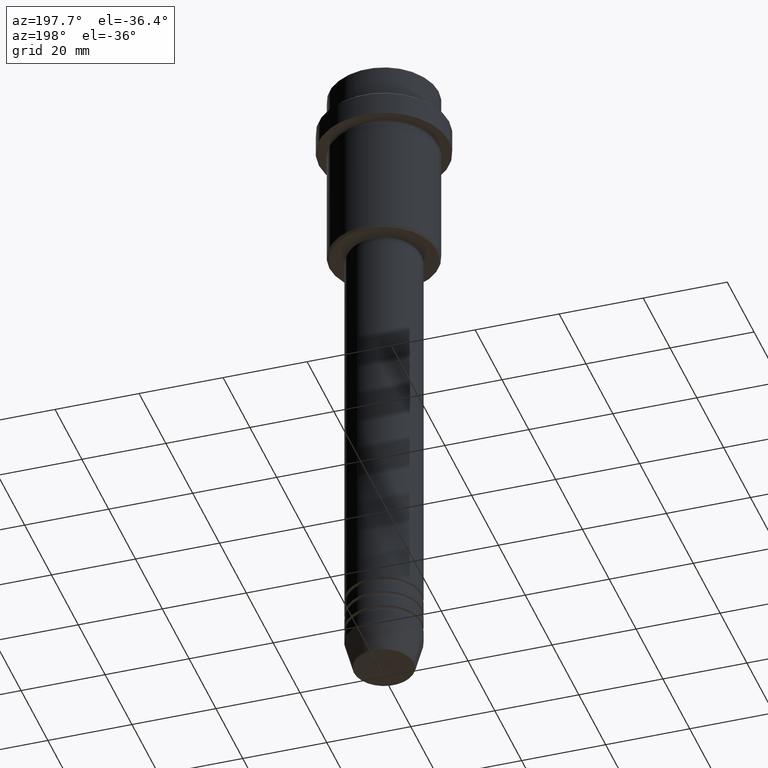
[diagram: clean part render]
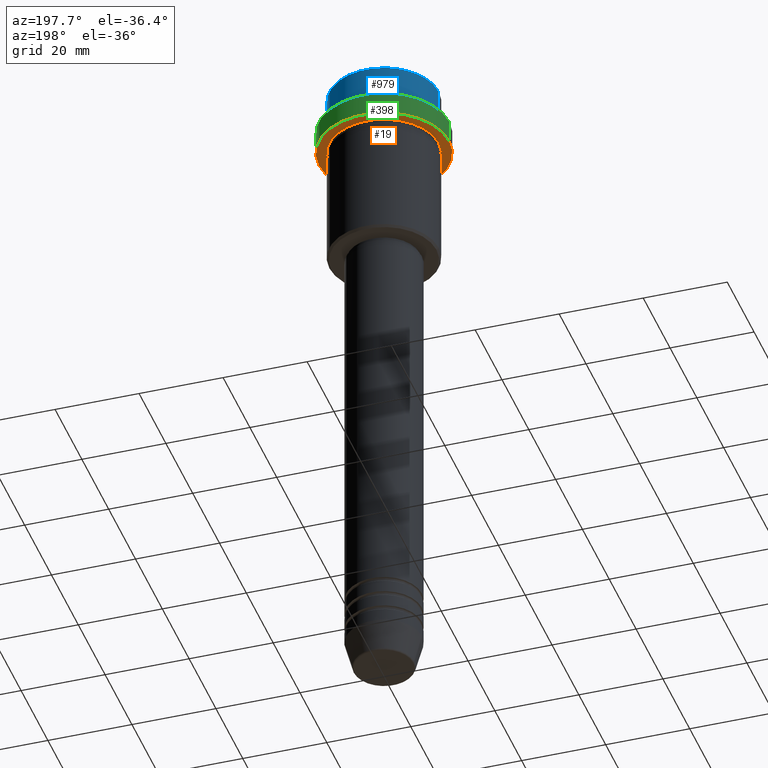
[diagram: same view with three faces highlighted in distinct colors, each labeled with its STEP entity id]
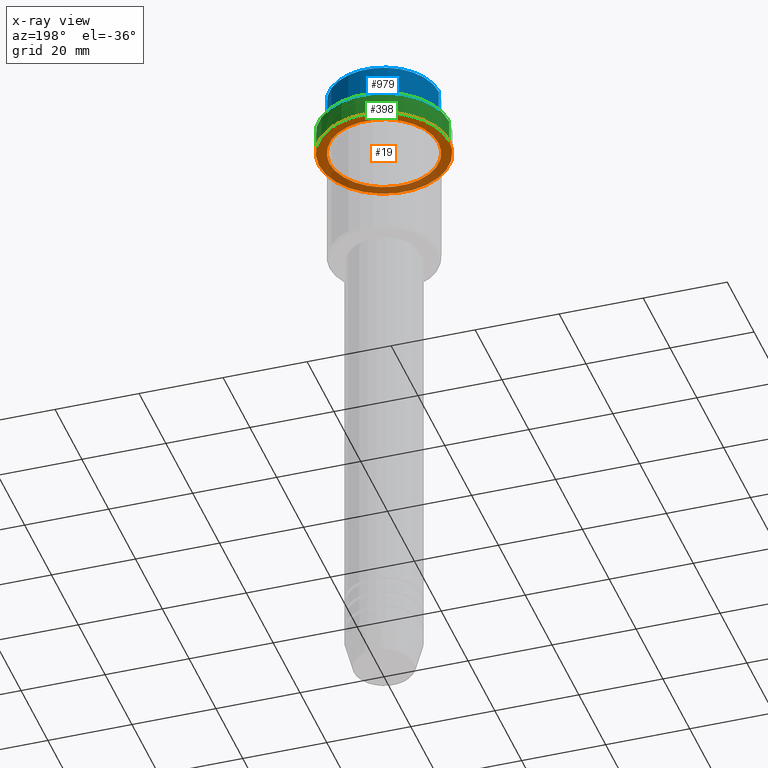
[diagram: x-ray of the same camera — body ghosted, the three highlighted faces saturated]
A machine part, auxiliary view with three faces highlighted in distinct colors.
The next image is the same camera in x-ray (body ghosted, the three faces saturated) — at least one of them is partly hidden behind the body in this view.
Their STEP definitions:

[orange] entity #19 — the highlighted planar face has unit normal (0, 0, -1).
#2 = FACE_BOUND ( 'NONE', #168, .T. ) ;
#19 = ADVANCED_FACE ( 'NONE', ( #2, #534 ), #982, .T. ) ;
#28 = DIRECTION ( 'NONE',  ( -0.000000000000000000, -0.000000000000000000, 1.000000000000000000 ) ) ;
#58 = CIRCLE ( 'NONE', #788, 12.99999999999999645 ) ;
#147 = CARTESIAN_POINT ( 'NONE',  ( 0.000000000000000000, 0.000000000000000000, -15.00000000000000000 ) ) ;
#148 = VERTEX_POINT ( 'NONE', #1319 ) ;
#159 = CARTESIAN_POINT ( 'NONE',  ( -15.50000000000000000, 1.898202538678397557E-15, -15.00000000000000000 ) ) ;
#168 = EDGE_LOOP ( 'NONE', ( #543, #1152 ) ) ;
#177 = VERTEX_POINT ( 'NONE', #347 ) ;
#200 = CIRCLE ( 'NONE', #1112, 15.50000000000000000 ) ;
#255 = VERTEX_POINT ( 'NONE', #159 ) ;
#288 = CIRCLE ( 'NONE', #1153, 15.50000000000000000 ) ;
#308 = VERTEX_POINT ( 'NONE', #1239 ) ;
#347 = CARTESIAN_POINT ( 'NONE',  ( -12.99999999999999645, 0.000000000000000000, -15.00000000000000000 ) ) ;
#349 = ORIENTED_EDGE ( 'NONE', *, *, #740, .F. ) ;
#353 = CARTESIAN_POINT ( 'NONE',  ( 0.000000000000000000, 0.000000000000000000, -15.00000000000000000 ) ) ;
#364 = DIRECTION ( 'NONE',  ( -1.000000000000000000, 0.000000000000000000, 0.000000000000000000 ) ) ;
#385 = DIRECTION ( 'NONE',  ( -0.000000000000000000, -0.000000000000000000, 1.000000000000000000 ) ) ;
#534 = FACE_OUTER_BOUND ( 'NONE', #1316, .T. ) ;
#543 = ORIENTED_EDGE ( 'NONE', *, *, #1297, .T. ) ;
#569 = CARTESIAN_POINT ( 'NONE',  ( 0.000000000000000000, 0.000000000000000000, -15.00000000000000000 ) ) ;
#627 = CARTESIAN_POINT ( 'NONE',  ( 0.000000000000000000, 15.50000000000000000, -15.00000000000000000 ) ) ;
#663 = DIRECTION ( 'NONE',  ( 1.000000000000000000, 0.000000000000000000, 0.000000000000000000 ) ) ;
#677 = AXIS2_PLACEMENT_3D ( 'NONE', #147, #385, #900 ) ;
#692 = DIRECTION ( 'NONE',  ( -0.000000000000000000, -0.000000000000000000, 1.000000000000000000 ) ) ;
#695 = EDGE_CURVE ( 'NONE', #308, #177, #58, .T. ) ;
#740 = EDGE_CURVE ( 'NONE', #148, #255, #288, .T. ) ;
#788 = AXIS2_PLACEMENT_3D ( 'NONE', #799, #692, #364 ) ;
#799 = CARTESIAN_POINT ( 'NONE',  ( 0.000000000000000000, 0.000000000000000000, -15.00000000000000000 ) ) ;
#874 = DIRECTION ( 'NONE',  ( -1.000000000000000000, 0.000000000000000000, -0.000000000000000000 ) ) ;
#900 = DIRECTION ( 'NONE',  ( -1.000000000000000000, 0.000000000000000000, 0.000000000000000000 ) ) ;
#953 = CIRCLE ( 'NONE', #677, 12.99999999999999645 ) ;
#982 = PLANE ( 'NONE',  #1105 ) ;
#1015 = DIRECTION ( 'NONE',  ( 1.000000000000000000, 0.000000000000000000, 0.000000000000000000 ) ) ;
#1077 = DIRECTION ( 'NONE',  ( 0.000000000000000000, 0.000000000000000000, -1.000000000000000000 ) ) ;
#1105 = AXIS2_PLACEMENT_3D ( 'NONE', #627, #1077, #874 ) ;
#1112 = AXIS2_PLACEMENT_3D ( 'NONE', #569, #28, #1015 ) ;
#1152 = ORIENTED_EDGE ( 'NONE', *, *, #695, .T. ) ;
#1153 = AXIS2_PLACEMENT_3D ( 'NONE', #353, #1320, #663 ) ;
#1167 = EDGE_CURVE ( 'NONE', #255, #148, #200, .T. ) ;
#1229 = ORIENTED_EDGE ( 'NONE', *, *, #1167, .F. ) ;
#1239 = CARTESIAN_POINT ( 'NONE',  ( 12.99999999999999645, 1.592040838891558701E-15, -15.00000000000000000 ) ) ;
#1297 = EDGE_CURVE ( 'NONE', #177, #308, #953, .T. ) ;
#1316 = EDGE_LOOP ( 'NONE', ( #349, #1229 ) ) ;
#1319 = CARTESIAN_POINT ( 'NONE',  ( 15.50000000000000000, 0.000000000000000000, -15.00000000000000000 ) ) ;
#1320 = DIRECTION ( 'NONE',  ( -0.000000000000000000, -0.000000000000000000, 1.000000000000000000 ) ) ;

[blue] entity #979 — the highlighted cylindrical surface (partial cylindrical patch) has radius 13 mm, axis along (-0, -0, 1).
#23 = ORIENTED_EDGE ( 'NONE', *, *, #901, .T. ) ;
#98 = LINE ( 'NONE', #636, #311 ) ;
#169 = CARTESIAN_POINT ( 'NONE',  ( 12.99999999999999822, 0.000000000000000000, 0.000000000000000000 ) ) ;
#176 = ORIENTED_EDGE ( 'NONE', *, *, #651, .T. ) ;
#181 = EDGE_CURVE ( 'NONE', #1035, #596, #556, .T. ) ;
#227 = CARTESIAN_POINT ( 'NONE',  ( 0.000000000000000000, 0.000000000000000000, -7.999999999999998224 ) ) ;
#251 = CARTESIAN_POINT ( 'NONE',  ( -12.99999999999999822, 1.592040838891558898E-15, -0.4999999999999900080 ) ) ;
#311 = VECTOR ( 'NONE', #525, 1000.000000000000000 ) ;
#329 = EDGE_CURVE ( 'NONE', #1035, #1350, #709, .T. ) ;
#365 = ORIENTED_EDGE ( 'NONE', *, *, #181, .T. ) ;
#525 = DIRECTION ( 'NONE',  ( -0.000000000000000000, -0.000000000000000000, 1.000000000000000000 ) ) ;
#536 = DIRECTION ( 'NONE',  ( 1.000000000000000000, 0.000000000000000000, 0.000000000000000000 ) ) ;
#556 = CIRCLE ( 'NONE', #716, 12.99999999999999822 ) ;
#595 = CYLINDRICAL_SURFACE ( 'NONE', #1085, 12.99999999999999822 ) ;
#596 = VERTEX_POINT ( 'NONE', #1306 ) ;
#636 = CARTESIAN_POINT ( 'NONE',  ( -12.99999999999999822, 1.592040838891558898E-15, 0.000000000000000000 ) ) ;
#650 = CARTESIAN_POINT ( 'NONE',  ( 0.000000000000000000, 0.000000000000000000, -0.4999999999999900080 ) ) ;
#651 = EDGE_CURVE ( 'NONE', #1267, #1350, #1037, .T. ) ;
#657 = DIRECTION ( 'NONE',  ( -0.000000000000000000, -0.000000000000000000, 1.000000000000000000 ) ) ;
#709 = LINE ( 'NONE', #169, #1017 ) ;
#716 = AXIS2_PLACEMENT_3D ( 'NONE', #227, #657, #1108 ) ;
#813 = DIRECTION ( 'NONE',  ( -0.000000000000000000, -0.000000000000000000, 1.000000000000000000 ) ) ;
#861 = AXIS2_PLACEMENT_3D ( 'NONE', #650, #1088, #536 ) ;
#863 = EDGE_LOOP ( 'NONE', ( #365, #23, #176, #1194 ) ) ;
#901 = EDGE_CURVE ( 'NONE', #596, #1267, #98, .T. ) ;
#946 = CARTESIAN_POINT ( 'NONE',  ( 12.99999999999999822, 0.000000000000000000, -0.4999999999999900080 ) ) ;
#979 = ADVANCED_FACE ( 'NONE', ( #1241 ), #595, .T. ) ;
#1004 = CARTESIAN_POINT ( 'NONE',  ( 12.99999999999999822, 0.000000000000000000, -7.999999999999998224 ) ) ;
#1017 = VECTOR ( 'NONE', #813, 1000.000000000000000 ) ;
#1030 = DIRECTION ( 'NONE',  ( -0.000000000000000000, -0.000000000000000000, 1.000000000000000000 ) ) ;
#1035 = VERTEX_POINT ( 'NONE', #1004 ) ;
#1037 = CIRCLE ( 'NONE', #861, 12.99999999999999822 ) ;
#1061 = CARTESIAN_POINT ( 'NONE',  ( 0.000000000000000000, 0.000000000000000000, 0.000000000000000000 ) ) ;
#1085 = AXIS2_PLACEMENT_3D ( 'NONE', #1061, #1030, #1386 ) ;
#1088 = DIRECTION ( 'NONE',  ( 0.000000000000000000, 0.000000000000000000, -1.000000000000000000 ) ) ;
#1108 = DIRECTION ( 'NONE',  ( 1.000000000000000000, 0.000000000000000000, 0.000000000000000000 ) ) ;
#1194 = ORIENTED_EDGE ( 'NONE', *, *, #329, .F. ) ;
#1241 = FACE_OUTER_BOUND ( 'NONE', #863, .T. ) ;
#1267 = VERTEX_POINT ( 'NONE', #251 ) ;
#1306 = CARTESIAN_POINT ( 'NONE',  ( -12.99999999999999822, 1.592040838891558898E-15, -7.999999999999998224 ) ) ;
#1350 = VERTEX_POINT ( 'NONE', #946 ) ;
#1386 = DIRECTION ( 'NONE',  ( 1.000000000000000000, 0.000000000000000000, 0.000000000000000000 ) ) ;

[green] entity #398 — the highlighted cylindrical surface (partial cylindrical patch) has radius 15.5 mm, axis along (-0, -0, 1).
#65 = VERTEX_POINT ( 'NONE', #212 ) ;
#110 = CYLINDRICAL_SURFACE ( 'NONE', #1059, 15.50000000000000000 ) ;
#148 = VERTEX_POINT ( 'NONE', #1319 ) ;
#159 = CARTESIAN_POINT ( 'NONE',  ( -15.50000000000000000, 1.898202538678397557E-15, -15.00000000000000000 ) ) ;
#172 = ORIENTED_EDGE ( 'NONE', *, *, #700, .T. ) ;
#185 = CARTESIAN_POINT ( 'NONE',  ( 0.000000000000000000, 0.000000000000000000, -9.500000000000026645 ) ) ;
#212 = CARTESIAN_POINT ( 'NONE',  ( -15.50000000000000000, 1.898202538678397557E-15, -9.500000000000026645 ) ) ;
#255 = VERTEX_POINT ( 'NONE', #159 ) ;
#266 = VECTOR ( 'NONE', #1012, 1000.000000000000000 ) ;
#288 = CIRCLE ( 'NONE', #1153, 15.50000000000000000 ) ;
#350 = CARTESIAN_POINT ( 'NONE',  ( 15.50000000000000000, 0.000000000000000000, 0.000000000000000000 ) ) ;
#353 = CARTESIAN_POINT ( 'NONE',  ( 0.000000000000000000, 0.000000000000000000, -15.00000000000000000 ) ) ;
#380 = CIRCLE ( 'NONE', #972, 15.50000000000000000 ) ;
#398 = ADVANCED_FACE ( 'NONE', ( #1402 ), #110, .T. ) ;
#420 = DIRECTION ( 'NONE',  ( -0.000000000000000000, -0.000000000000000000, 1.000000000000000000 ) ) ;
#459 = VERTEX_POINT ( 'NONE', #1193 ) ;
#612 = ORIENTED_EDGE ( 'NONE', *, *, #1135, .F. ) ;
#663 = DIRECTION ( 'NONE',  ( 1.000000000000000000, 0.000000000000000000, 0.000000000000000000 ) ) ;
#700 = EDGE_CURVE ( 'NONE', #255, #65, #785, .T. ) ;
#740 = EDGE_CURVE ( 'NONE', #148, #255, #288, .T. ) ;
#747 = VECTOR ( 'NONE', #781, 1000.000000000000000 ) ;
#781 = DIRECTION ( 'NONE',  ( -0.000000000000000000, -0.000000000000000000, 1.000000000000000000 ) ) ;
#785 = LINE ( 'NONE', #1327, #266 ) ;
#814 = DIRECTION ( 'NONE',  ( 1.000000000000000000, 0.000000000000000000, 0.000000000000000000 ) ) ;
#892 = EDGE_CURVE ( 'NONE', #65, #459, #380, .T. ) ;
#972 = AXIS2_PLACEMENT_3D ( 'NONE', #185, #1361, #814 ) ;
#980 = CARTESIAN_POINT ( 'NONE',  ( 0.000000000000000000, 0.000000000000000000, 0.000000000000000000 ) ) ;
#1012 = DIRECTION ( 'NONE',  ( -0.000000000000000000, -0.000000000000000000, 1.000000000000000000 ) ) ;
#1059 = AXIS2_PLACEMENT_3D ( 'NONE', #980, #420, #1163 ) ;
#1135 = EDGE_CURVE ( 'NONE', #148, #459, #1324, .T. ) ;
#1153 = AXIS2_PLACEMENT_3D ( 'NONE', #353, #1320, #663 ) ;
#1163 = DIRECTION ( 'NONE',  ( 1.000000000000000000, 0.000000000000000000, 0.000000000000000000 ) ) ;
#1193 = CARTESIAN_POINT ( 'NONE',  ( 15.50000000000000000, 0.000000000000000000, -9.500000000000026645 ) ) ;
#1236 = ORIENTED_EDGE ( 'NONE', *, *, #892, .T. ) ;
#1251 = EDGE_LOOP ( 'NONE', ( #1304, #172, #1236, #612 ) ) ;
#1304 = ORIENTED_EDGE ( 'NONE', *, *, #740, .T. ) ;
#1319 = CARTESIAN_POINT ( 'NONE',  ( 15.50000000000000000, 0.000000000000000000, -15.00000000000000000 ) ) ;
#1320 = DIRECTION ( 'NONE',  ( -0.000000000000000000, -0.000000000000000000, 1.000000000000000000 ) ) ;
#1324 = LINE ( 'NONE', #350, #747 ) ;
#1327 = CARTESIAN_POINT ( 'NONE',  ( -15.50000000000000000, 1.898202538678397557E-15, 0.000000000000000000 ) ) ;
#1361 = DIRECTION ( 'NONE',  ( 0.000000000000000000, 0.000000000000000000, -1.000000000000000000 ) ) ;
#1402 = FACE_OUTER_BOUND ( 'NONE', #1251, .T. ) ;